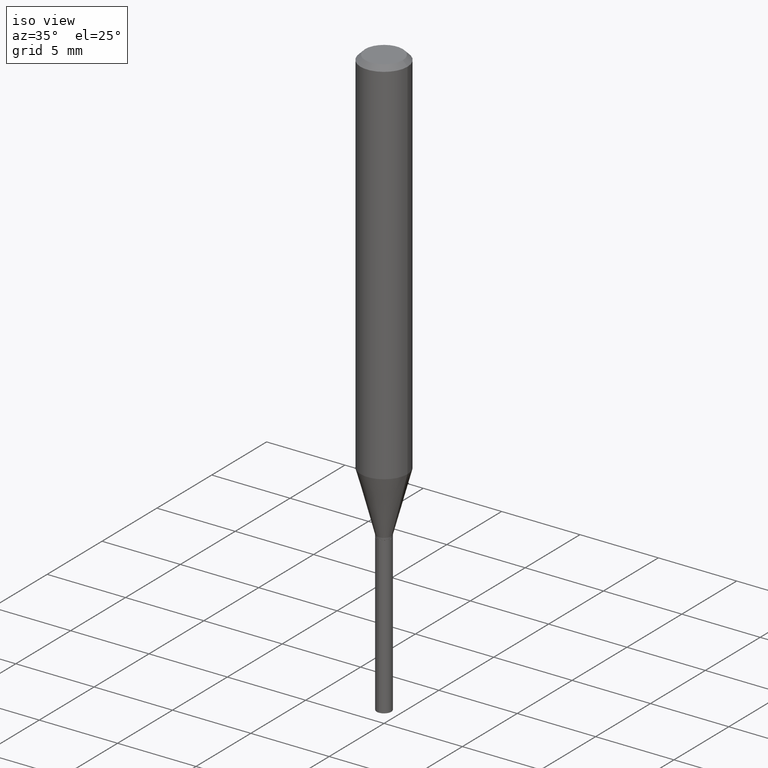
[diagram: clean part render]
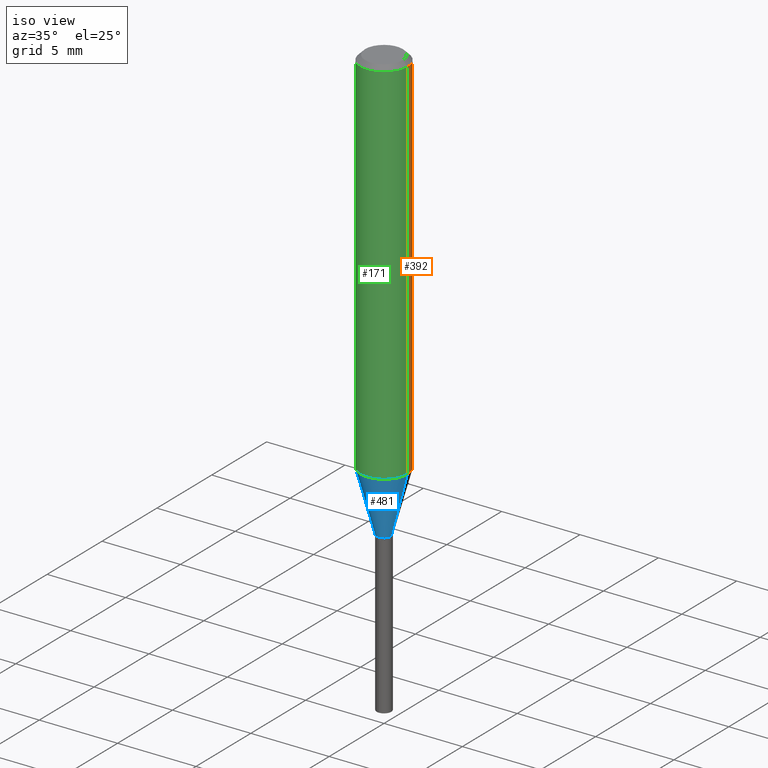
[diagram: same view with three faces highlighted in distinct colors, each labeled with its STEP entity id]
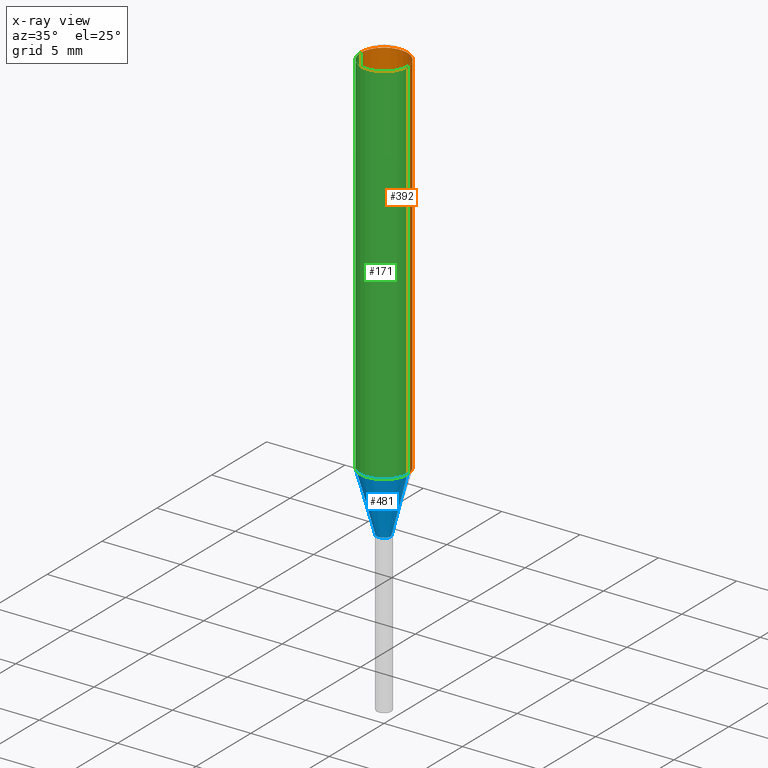
[diagram: x-ray of the same camera — body ghosted, the three highlighted faces saturated]
A machine part, iso view with three faces highlighted in distinct colors.
The next image is the same camera in x-ray (body ghosted, the three faces saturated) — at least one of them is partly hidden behind the body in this view.
Their STEP definitions:

[orange] entity #392 — the highlighted cylindrical surface (edge-blend (fillet) strip) has radius 1.4999 mm, axis along (-0, 0, 1).
#15 = DIRECTION ( 'NONE',  ( 1.000000000000000000, -6.982962677686268288E-15, 0.000000000000000000 ) ) ;
#36 = CARTESIAN_POINT ( 'NONE',  ( -0.05905000000000010241, -2.851659473211515038E-15, -0.9369189295915679727 ) ) ;
#41 = EDGE_CURVE ( 'NONE', #252, #218, #65, .T. ) ;
#59 = EDGE_CURVE ( 'NONE', #386, #252, #435, .T. ) ;
#65 = CIRCLE ( 'NONE', #246, 0.05904999999999999832 ) ;
#83 = DIRECTION ( 'NONE',  ( -2.445468806185136597E-29, 3.491481338843145583E-15, 1.000000000000000000 ) ) ;
#84 = CARTESIAN_POINT ( 'NONE',  ( 0.05904999999999999832, -4.535783407291118600E-16, -0.01181000000000006871 ) ) ;
#96 = CARTESIAN_POINT ( 'NONE',  ( -0.05905000000000005383, 4.195754854663395423E-16, -2.904631170795524694E-30 ) ) ;
#101 = ORIENTED_EDGE ( 'NONE', *, *, #424, .T. ) ;
#109 = CARTESIAN_POINT ( 'NONE',  ( 2.888098660104663328E-31, -4.123439461173779030E-17, -0.01181000000000006871 ) ) ;
#147 = CARTESIAN_POINT ( 'NONE',  ( -0.05904999999999999832, -1.236659191178456045E-15, -0.01181000000000006871 ) ) ;
#149 = DIRECTION ( 'NONE',  ( 1.000000000000000000, -6.982962677686266711E-15, 0.000000000000000000 ) ) ;
#166 = CARTESIAN_POINT ( 'NONE',  ( 0.05905000000000010241, -3.683578904795229057E-15, -0.9369189295915679727 ) ) ;
#176 = VERTEX_POINT ( 'NONE', #36 ) ;
#203 = CARTESIAN_POINT ( 'NONE',  ( 2.291206016240548157E-29, -3.271234958677854531E-15, -0.9369189295915679727 ) ) ;
#204 = CIRCLE ( 'NONE', #395, 0.05905000000000010241 ) ;
#217 = DIRECTION ( 'NONE',  ( -2.445468806185136877E-29, 3.491481338843145188E-15, 1.000000000000000000 ) ) ;
#218 = VERTEX_POINT ( 'NONE', #147 ) ;
#221 = VECTOR ( 'NONE', #217, 39.37007874015748143 ) ;
#237 = DIRECTION ( 'NONE',  ( 1.000000000000000000, -6.982962677686266711E-15, 4.876176775795935793E-29 ) ) ;
#246 = AXIS2_PLACEMENT_3D ( 'NONE', #109, #263, #149 ) ;
#252 = VERTEX_POINT ( 'NONE', #84 ) ;
#263 = DIRECTION ( 'NONE',  ( -2.445468806185136597E-29, 3.491481338843145583E-15, 1.000000000000000000 ) ) ;
#265 = ORIENTED_EDGE ( 'NONE', *, *, #59, .F. ) ;
#277 = FACE_OUTER_BOUND ( 'NONE', #443, .T. ) ;
#278 = EDGE_CURVE ( 'NONE', #386, #176, #204, .T. ) ;
#317 = VECTOR ( 'NONE', #360, 39.37007874015748143 ) ;
#335 = CARTESIAN_POINT ( 'NONE',  ( 0.05905000000000005383, -4.123439461173744271E-16, 2.879382386107502672E-30 ) ) ;
#343 = ORIENTED_EDGE ( 'NONE', *, *, #41, .F. ) ;
#354 = DIRECTION ( 'NONE',  ( -2.445468806185136597E-29, 3.491481338843145583E-15, 1.000000000000000000 ) ) ;
#360 = DIRECTION ( 'NONE',  ( -2.445468806185136877E-29, 3.491481338843145188E-15, 1.000000000000000000 ) ) ;
#366 = LINE ( 'NONE', #96, #221 ) ;
#370 = ORIENTED_EDGE ( 'NONE', *, *, #278, .T. ) ;
#386 = VERTEX_POINT ( 'NONE', #166 ) ;
#392 = ADVANCED_FACE ( 'NONE', ( #277 ), #434, .T. ) ;
#395 = AXIS2_PLACEMENT_3D ( 'NONE', #203, #354, #15 ) ;
#424 = EDGE_CURVE ( 'NONE', #176, #218, #366, .T. ) ;
#434 = CYLINDRICAL_SURFACE ( 'NONE', #467, 0.05905000000000005383 ) ;
#435 = LINE ( 'NONE', #335, #317 ) ;
#438 = CARTESIAN_POINT ( 'NONE',  ( 0.000000000000000000, 0.000000000000000000, 0.000000000000000000 ) ) ;
#443 = EDGE_LOOP ( 'NONE', ( #370, #101, #343, #265 ) ) ;
#467 = AXIS2_PLACEMENT_3D ( 'NONE', #438, #83, #237 ) ;

[blue] entity #481 — the highlighted conical surface has half-angle 15 deg.
#19 = AXIS2_PLACEMENT_3D ( 'NONE', #420, #280, #324 ) ;
#36 = CARTESIAN_POINT ( 'NONE',  ( -0.05905000000000010241, -2.851659473211515038E-15, -0.9369189295915679727 ) ) ;
#58 = CARTESIAN_POINT ( 'NONE',  ( 2.663115529935613220E-29, -3.802223178000185445E-15, -1.088999999999999968 ) ) ;
#68 = EDGE_CURVE ( 'NONE', #176, #386, #488, .T. ) ;
#71 = ORIENTED_EDGE ( 'NONE', *, *, #68, .F. ) ;
#94 = LINE ( 'NONE', #140, #199 ) ;
#124 = DIRECTION ( 'NONE',  ( 0.2588190451025211281, 1.565188264969622954E-15, 0.9659258262890679791 ) ) ;
#125 = AXIS2_PLACEMENT_3D ( 'NONE', #234, #393, #470 ) ;
#135 = DIRECTION ( 'NONE',  ( -2.445468806185136597E-29, 3.491481338843145583E-15, 1.000000000000000000 ) ) ;
#137 = EDGE_LOOP ( 'NONE', ( #375, #225, #255, #71 ) ) ;
#140 = CARTESIAN_POINT ( 'NONE',  ( -0.01830000000000000029, -3.672193857356087232E-15, -1.088999999999999968 ) ) ;
#160 = CARTESIAN_POINT ( 'NONE',  ( 0.01830000000000000029, -3.930011395001844240E-15, -1.088999999999999968 ) ) ;
#166 = CARTESIAN_POINT ( 'NONE',  ( 0.05905000000000010241, -3.683578904795229057E-15, -0.9369189295915679727 ) ) ;
#176 = VERTEX_POINT ( 'NONE', #36 ) ;
#180 = DIRECTION ( 'NONE',  ( 1.000000000000000000, -6.982962677686258033E-15, 0.000000000000000000 ) ) ;
#189 = CIRCLE ( 'NONE', #19, 0.01830000000000000029 ) ;
#199 = VECTOR ( 'NONE', #444, 39.37007874015748854 ) ;
#209 = CARTESIAN_POINT ( 'NONE',  ( -0.01830000000000000029, -3.680922560703194750E-15, -1.088999999999999968 ) ) ;
#225 = ORIENTED_EDGE ( 'NONE', *, *, #243, .T. ) ;
#234 = CARTESIAN_POINT ( 'NONE',  ( 2.291206016240548157E-29, -3.271234958677854531E-15, -0.9369189295915679727 ) ) ;
#236 = CARTESIAN_POINT ( 'NONE',  ( 0.01830000000000000029, -3.930011395001844240E-15, -1.088999999999999968 ) ) ;
#243 = EDGE_CURVE ( 'NONE', #416, #383, #189, .T. ) ;
#245 = FACE_OUTER_BOUND ( 'NONE', #137, .T. ) ;
#255 = ORIENTED_EDGE ( 'NONE', *, *, #340, .T. ) ;
#258 = CONICAL_SURFACE ( 'NONE', #318, 0.01830000000000000029, 0.2617993877991498519 ) ;
#280 = DIRECTION ( 'NONE',  ( -2.445468806185136597E-29, 3.491481338843145583E-15, 1.000000000000000000 ) ) ;
#318 = AXIS2_PLACEMENT_3D ( 'NONE', #58, #135, #180 ) ;
#324 = DIRECTION ( 'NONE',  ( 1.000000000000000000, -6.982962677686258033E-15, 0.000000000000000000 ) ) ;
#340 = EDGE_CURVE ( 'NONE', #383, #386, #476, .T. ) ;
#375 = ORIENTED_EDGE ( 'NONE', *, *, #469, .F. ) ;
#379 = VECTOR ( 'NONE', #124, 39.37007874015748854 ) ;
#383 = VERTEX_POINT ( 'NONE', #160 ) ;
#386 = VERTEX_POINT ( 'NONE', #166 ) ;
#393 = DIRECTION ( 'NONE',  ( -2.445468806185136597E-29, 3.491481338843145583E-15, 1.000000000000000000 ) ) ;
#416 = VERTEX_POINT ( 'NONE', #209 ) ;
#420 = CARTESIAN_POINT ( 'NONE',  ( 2.663115529935613220E-29, -3.802223178000185445E-15, -1.088999999999999968 ) ) ;
#444 = DIRECTION ( 'NONE',  ( -0.2588190451025211281, 5.211531920934547886E-15, 0.9659258262890679791 ) ) ;
#469 = EDGE_CURVE ( 'NONE', #416, #176, #94, .T. ) ;
#470 = DIRECTION ( 'NONE',  ( 1.000000000000000000, -6.982962677686268288E-15, 0.000000000000000000 ) ) ;
#476 = LINE ( 'NONE', #236, #379 ) ;
#481 = ADVANCED_FACE ( 'NONE', ( #245 ), #258, .T. ) ;
#488 = CIRCLE ( 'NONE', #125, 0.05905000000000010241 ) ;

[green] entity #171 — the highlighted cylindrical surface (edge-blend (fillet) strip) has radius 1.4999 mm, axis along (-0, 0, 1).
#1 = ORIENTED_EDGE ( 'NONE', *, *, #59, .T. ) ;
#5 = AXIS2_PLACEMENT_3D ( 'NONE', #226, #150, #224 ) ;
#36 = CARTESIAN_POINT ( 'NONE',  ( -0.05905000000000010241, -2.851659473211515038E-15, -0.9369189295915679727 ) ) ;
#59 = EDGE_CURVE ( 'NONE', #386, #252, #435, .T. ) ;
#61 = ORIENTED_EDGE ( 'NONE', *, *, #82, .F. ) ;
#68 = EDGE_CURVE ( 'NONE', #176, #386, #488, .T. ) ;
#80 = DIRECTION ( 'NONE',  ( 1.000000000000000000, -6.982962677686266711E-15, 0.000000000000000000 ) ) ;
#82 = EDGE_CURVE ( 'NONE', #218, #252, #431, .T. ) ;
#84 = CARTESIAN_POINT ( 'NONE',  ( 0.05904999999999999832, -4.535783407291118600E-16, -0.01181000000000006871 ) ) ;
#96 = CARTESIAN_POINT ( 'NONE',  ( -0.05905000000000005383, 4.195754854663395423E-16, -2.904631170795524694E-30 ) ) ;
#125 = AXIS2_PLACEMENT_3D ( 'NONE', #234, #393, #470 ) ;
#147 = CARTESIAN_POINT ( 'NONE',  ( -0.05904999999999999832, -1.236659191178456045E-15, -0.01181000000000006871 ) ) ;
#150 = DIRECTION ( 'NONE',  ( -2.445468806185136597E-29, 3.491481338843145583E-15, 1.000000000000000000 ) ) ;
#154 = AXIS2_PLACEMENT_3D ( 'NONE', #313, #432, #80 ) ;
#166 = CARTESIAN_POINT ( 'NONE',  ( 0.05905000000000010241, -3.683578904795229057E-15, -0.9369189295915679727 ) ) ;
#171 = ADVANCED_FACE ( 'NONE', ( #223 ), #418, .T. ) ;
#176 = VERTEX_POINT ( 'NONE', #36 ) ;
#217 = DIRECTION ( 'NONE',  ( -2.445468806185136877E-29, 3.491481338843145188E-15, 1.000000000000000000 ) ) ;
#218 = VERTEX_POINT ( 'NONE', #147 ) ;
#221 = VECTOR ( 'NONE', #217, 39.37007874015748143 ) ;
#223 = FACE_OUTER_BOUND ( 'NONE', #303, .T. ) ;
#224 = DIRECTION ( 'NONE',  ( 1.000000000000000000, -6.982962677686266711E-15, 4.876176775795935793E-29 ) ) ;
#226 = CARTESIAN_POINT ( 'NONE',  ( 0.000000000000000000, 0.000000000000000000, 0.000000000000000000 ) ) ;
#234 = CARTESIAN_POINT ( 'NONE',  ( 2.291206016240548157E-29, -3.271234958677854531E-15, -0.9369189295915679727 ) ) ;
#252 = VERTEX_POINT ( 'NONE', #84 ) ;
#303 = EDGE_LOOP ( 'NONE', ( #458, #408, #1, #61 ) ) ;
#313 = CARTESIAN_POINT ( 'NONE',  ( 2.888098660104663328E-31, -4.123439461173779030E-17, -0.01181000000000006871 ) ) ;
#317 = VECTOR ( 'NONE', #360, 39.37007874015748143 ) ;
#335 = CARTESIAN_POINT ( 'NONE',  ( 0.05905000000000005383, -4.123439461173744271E-16, 2.879382386107502672E-30 ) ) ;
#360 = DIRECTION ( 'NONE',  ( -2.445468806185136877E-29, 3.491481338843145188E-15, 1.000000000000000000 ) ) ;
#366 = LINE ( 'NONE', #96, #221 ) ;
#386 = VERTEX_POINT ( 'NONE', #166 ) ;
#393 = DIRECTION ( 'NONE',  ( -2.445468806185136597E-29, 3.491481338843145583E-15, 1.000000000000000000 ) ) ;
#408 = ORIENTED_EDGE ( 'NONE', *, *, #68, .T. ) ;
#418 = CYLINDRICAL_SURFACE ( 'NONE', #5, 0.05905000000000005383 ) ;
#424 = EDGE_CURVE ( 'NONE', #176, #218, #366, .T. ) ;
#431 = CIRCLE ( 'NONE', #154, 0.05904999999999999832 ) ;
#432 = DIRECTION ( 'NONE',  ( -2.445468806185136597E-29, 3.491481338843145583E-15, 1.000000000000000000 ) ) ;
#435 = LINE ( 'NONE', #335, #317 ) ;
#458 = ORIENTED_EDGE ( 'NONE', *, *, #424, .F. ) ;
#470 = DIRECTION ( 'NONE',  ( 1.000000000000000000, -6.982962677686268288E-15, 0.000000000000000000 ) ) ;
#488 = CIRCLE ( 'NONE', #125, 0.05905000000000010241 ) ;